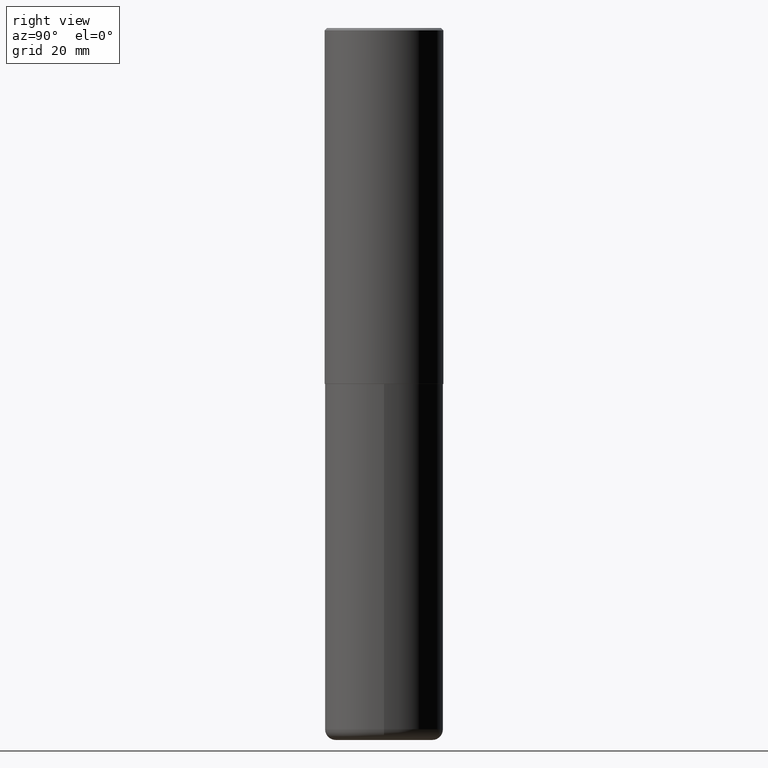
[diagram: clean part render]
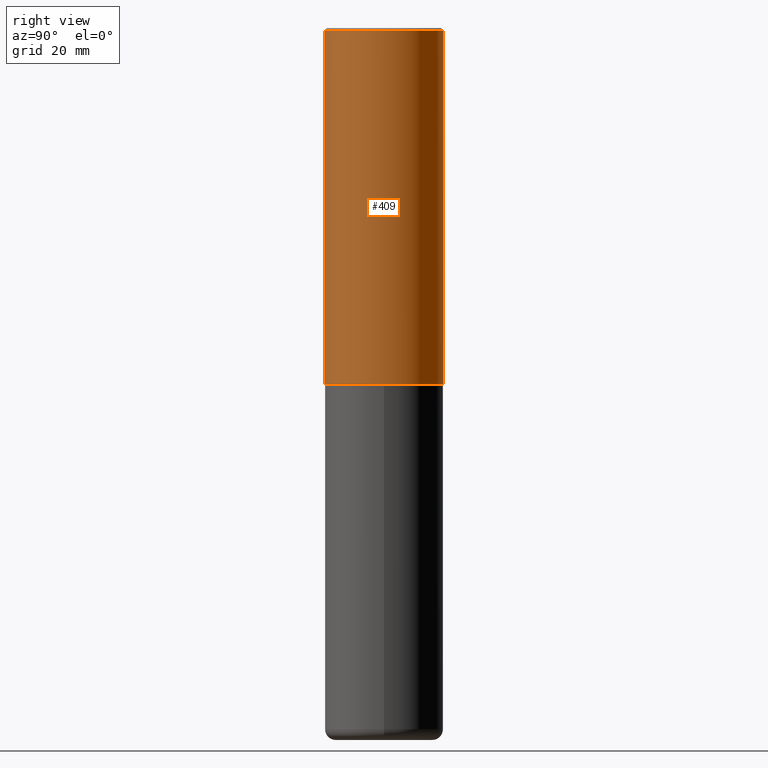
[diagram: same view with one face highlighted and labeled with its STEP entity id]
A machine part, right view. The second image highlights one B-rep face of the part: STEP entity #409.
In plain terms, the highlighted cylindrical surface (partial cylindrical patch) has radius 12.7 mm, axis along (-0, 0, 1).
Its self-contained STEP definition (entity closure, byte-faithful):
#19 = CIRCLE ( 'NONE', #259, 0.5000000000000000000 ) ;
#25 = CARTESIAN_POINT ( 'NONE',  ( 3.491481338843133355E-15, 0.4999999999999999445, -0.02000000000000185310 ) ) ;
#39 = DIRECTION ( 'NONE',  ( -6.982962677686266711E-15, -1.000000000000000000, 3.278217592397114284E-15 ) ) ;
#42 = CARTESIAN_POINT ( 'NONE',  ( -3.430248998885764992E-15, -0.5000000000000001110, -0.01999999999999835937 ) ) ;
#49 = CARTESIAN_POINT ( 'NONE',  ( 0.000000000000000000, 0.000000000000000000, 0.000000000000000000 ) ) ;
#55 = VERTEX_POINT ( 'NONE', #253 ) ;
#56 = DIRECTION ( 'NONE',  ( -2.444898033699712212E-29, 3.492298717528625990E-15, 1.000000000000000000 ) ) ;
#71 = DIRECTION ( 'NONE',  ( -2.444898033699712212E-29, 3.492298717528625990E-15, 1.000000000000000000 ) ) ;
#103 = CARTESIAN_POINT ( 'NONE',  ( 3.552713678800501718E-15, 0.5000000000000001110, -1.746149358764313390E-15 ) ) ;
#112 = CARTESIAN_POINT ( 'NONE',  ( 4.889796067399450837E-31, -6.984597435057287381E-17, -0.02000000000000010797 ) ) ;
#120 = ORIENTED_EDGE ( 'NONE', *, *, #338, .F. ) ;
#124 = ORIENTED_EDGE ( 'NONE', *, *, #246, .T. ) ;
#141 = VERTEX_POINT ( 'NONE', #288 ) ;
#143 = DIRECTION ( 'NONE',  ( -2.444898033699712212E-29, 3.492298717528625990E-15, 1.000000000000000000 ) ) ;
#144 = VERTEX_POINT ( 'NONE', #42 ) ;
#148 = VECTOR ( 'NONE', #171, 39.37007874015748143 ) ;
#171 = DIRECTION ( 'NONE',  ( -2.444898033699711931E-29, 3.492298717528626385E-15, 1.000000000000000000 ) ) ;
#177 = AXIS2_PLACEMENT_3D ( 'NONE', #49, #56, #272 ) ;
#214 = EDGE_LOOP ( 'NONE', ( #273, #124, #120, #304 ) ) ;
#216 = AXIS2_PLACEMENT_3D ( 'NONE', #396, #71, #39 ) ;
#218 = EDGE_CURVE ( 'NONE', #55, #144, #303, .T. ) ;
#233 = LINE ( 'NONE', #103, #399 ) ;
#237 = CIRCLE ( 'NONE', #216, 0.5000000000000002220 ) ;
#241 = DIRECTION ( 'NONE',  ( -6.982962677686265922E-15, -1.000000000000000000, 3.491643216902136408E-15 ) ) ;
#246 = EDGE_CURVE ( 'NONE', #141, #402, #233, .T. ) ;
#253 = CARTESIAN_POINT ( 'NONE',  ( -3.491481338843061569E-15, -0.5000000000000107692, -2.998999999999998778 ) ) ;
#259 = AXIS2_PLACEMENT_3D ( 'NONE', #112, #143, #241 ) ;
#261 = CARTESIAN_POINT ( 'NONE',  ( -3.491481338843133750E-15, -0.5000000000000001110, 1.746149358764313390E-15 ) ) ;
#272 = DIRECTION ( 'NONE',  ( -6.982962677686265922E-15, -1.000000000000000000, 3.492298717528625990E-15 ) ) ;
#273 = ORIENTED_EDGE ( 'NONE', *, *, #282, .T. ) ;
#275 = FACE_OUTER_BOUND ( 'NONE', #214, .T. ) ;
#282 = EDGE_CURVE ( 'NONE', #55, #141, #237, .T. ) ;
#288 = CARTESIAN_POINT ( 'NONE',  ( 3.552713678800539584E-15, 0.4999999999999898970, -2.999000000000001886 ) ) ;
#303 = LINE ( 'NONE', #261, #148 ) ;
#304 = ORIENTED_EDGE ( 'NONE', *, *, #218, .F. ) ;
#338 = EDGE_CURVE ( 'NONE', #144, #402, #19, .T. ) ;
#341 = CYLINDRICAL_SURFACE ( 'NONE', #177, 0.5000000000000001110 ) ;
#361 = DIRECTION ( 'NONE',  ( -2.444898033699711931E-29, 3.492298717528626385E-15, 1.000000000000000000 ) ) ;
#396 = CARTESIAN_POINT ( 'NONE',  ( 7.332249203065438921E-29, -1.047340385386834930E-14, -2.999000000000000554 ) ) ;
#399 = VECTOR ( 'NONE', #361, 39.37007874015748143 ) ;
#402 = VERTEX_POINT ( 'NONE', #25 ) ;
#409 = ADVANCED_FACE ( 'NONE', ( #275 ), #341, .T. ) ;